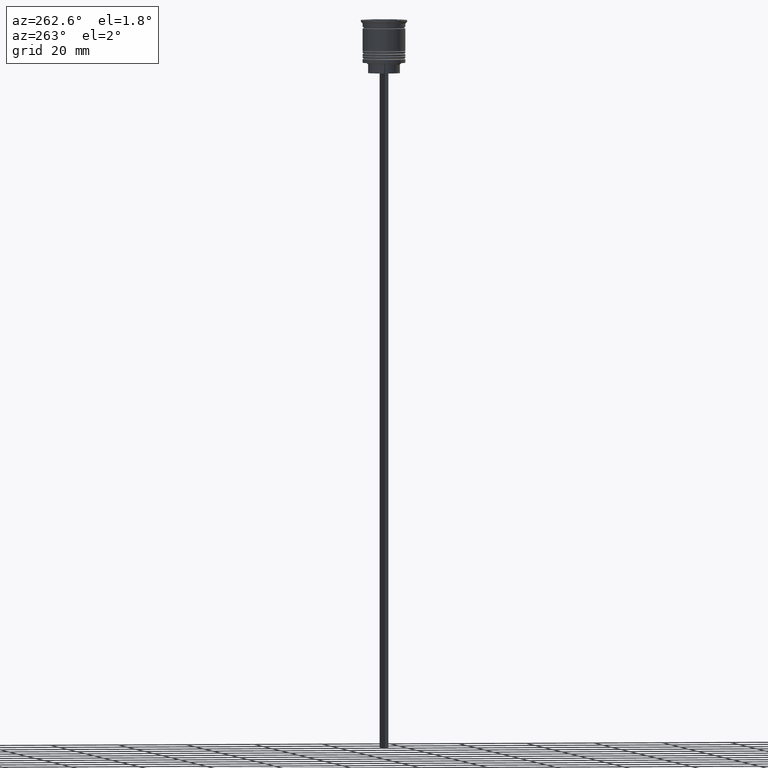
[diagram: clean part render]
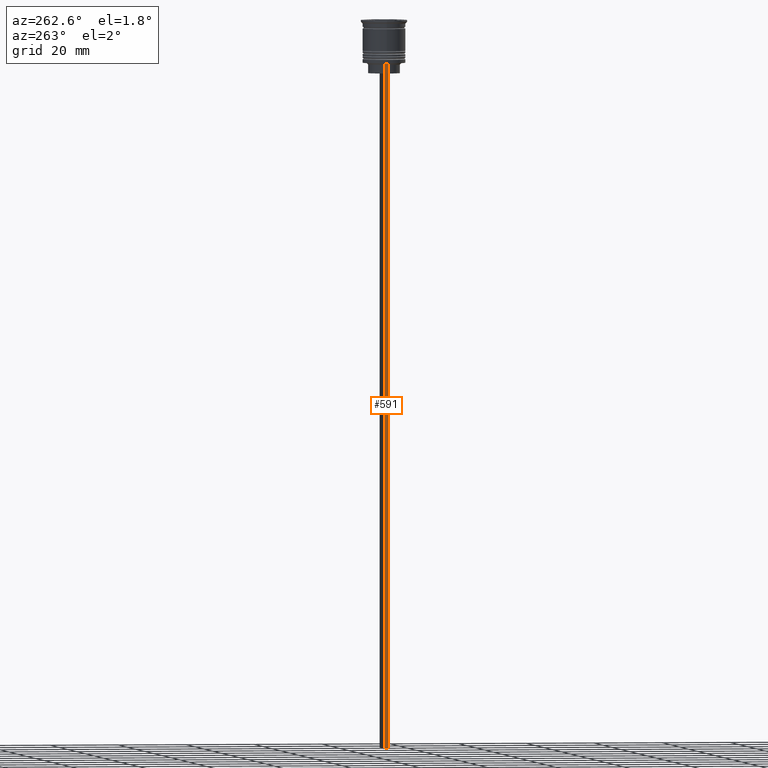
[diagram: same view with one face highlighted and labeled with its STEP entity id]
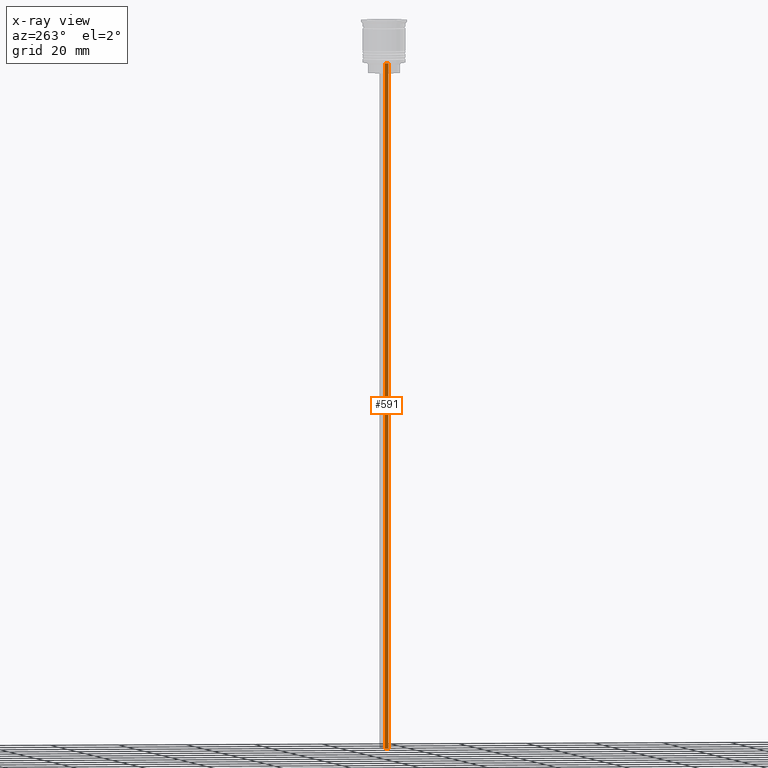
[diagram: x-ray of the same camera — body ghosted, the highlighted face saturated]
A machine part, auxiliary view. The second image highlights one B-rep face of the part: STEP entity #591.
The next image is the same camera in x-ray: the body ghosted, the highlighted face saturated — about 0% of this face is hidden behind the body in this view.
In plain terms, the highlighted planar face has unit normal (-1, 0, 0).
Its self-contained STEP definition (entity closure, byte-faithful):
#3 = CARTESIAN_POINT ( 'NONE',  ( -5.999999999999983125, -0.5000000000000017764, -0.4584054212077061097 ) ) ;
#14 = EDGE_CURVE ( 'NONE', #879, #1069, #113, .T. ) ;
#103 = EDGE_CURVE ( 'NONE', #270, #331, #505, .T. ) ;
#113 = LINE ( 'NONE', #1703, #846 ) ;
#270 = VERTEX_POINT ( 'NONE', #1501 ) ;
#331 = VERTEX_POINT ( 'NONE', #492 ) ;
#386 = EDGE_LOOP ( 'NONE', ( #420, #869, #1268, #1723 ) ) ;
#420 = ORIENTED_EDGE ( 'NONE', *, *, #14, .F. ) ;
#492 = CARTESIAN_POINT ( 'NONE',  ( -5.999999999999983125, 0.4999999999999982792, -212.5000000000000284 ) ) ;
#496 = DIRECTION ( 'NONE',  ( 0.000000000000000000, 1.000000000000000000, 0.000000000000000000 ) ) ;
#505 = LINE ( 'NONE', #1229, #2321 ) ;
#537 = FACE_OUTER_BOUND ( 'NONE', #386, .T. ) ;
#591 = ADVANCED_FACE ( 'NONE', ( #537 ), #1078, .T. ) ;
#846 = VECTOR ( 'NONE', #1364, 1000.000000000000000 ) ;
#869 = ORIENTED_EDGE ( 'NONE', *, *, #1105, .T. ) ;
#879 = VERTEX_POINT ( 'NONE', #2320 ) ;
#892 = CARTESIAN_POINT ( 'NONE',  ( -5.999999999999983125, -0.5000000000000017764, -0.4584054212077061097 ) ) ;
#1069 = VERTEX_POINT ( 'NONE', #1903 ) ;
#1078 = PLANE ( 'NONE',  #2290 ) ;
#1105 = EDGE_CURVE ( 'NONE', #879, #331, #1365, .T. ) ;
#1222 = LINE ( 'NONE', #3, #1998 ) ;
#1229 = CARTESIAN_POINT ( 'NONE',  ( -5.999999999999983125, -0.5000000000000017764, -212.5000000000000284 ) ) ;
#1268 = ORIENTED_EDGE ( 'NONE', *, *, #103, .F. ) ;
#1364 = DIRECTION ( 'NONE',  ( 0.000000000000000000, -1.000000000000000000, 0.000000000000000000 ) ) ;
#1365 = LINE ( 'NONE', #2056, #2062 ) ;
#1501 = CARTESIAN_POINT ( 'NONE',  ( -5.999999999999983125, -0.5000000000000017764, -212.5000000000000284 ) ) ;
#1618 = DIRECTION ( 'NONE',  ( 0.000000000000000000, 0.000000000000000000, -1.000000000000000000 ) ) ;
#1703 = CARTESIAN_POINT ( 'NONE',  ( -5.999999999999983125, -0.5000000000000017764, -12.50000000000000000 ) ) ;
#1723 = ORIENTED_EDGE ( 'NONE', *, *, #2081, .F. ) ;
#1812 = DIRECTION ( 'NONE',  ( 0.000000000000000000, 0.000000000000000000, 1.000000000000000000 ) ) ;
#1903 = CARTESIAN_POINT ( 'NONE',  ( -5.999999999999983125, -0.5000000000000017764, -12.50000000000000000 ) ) ;
#1985 = DIRECTION ( 'NONE',  ( -1.000000000000000000, 0.000000000000000000, 0.000000000000000000 ) ) ;
#1998 = VECTOR ( 'NONE', #1618, 1000.000000000000000 ) ;
#2056 = CARTESIAN_POINT ( 'NONE',  ( -5.999999999999983125, 0.4999999999999982792, -0.4584054212077061097 ) ) ;
#2062 = VECTOR ( 'NONE', #2246, 1000.000000000000000 ) ;
#2081 = EDGE_CURVE ( 'NONE', #1069, #270, #1222, .T. ) ;
#2246 = DIRECTION ( 'NONE',  ( 0.000000000000000000, 0.000000000000000000, -1.000000000000000000 ) ) ;
#2290 = AXIS2_PLACEMENT_3D ( 'NONE', #892, #1985, #1812 ) ;
#2320 = CARTESIAN_POINT ( 'NONE',  ( -5.999999999999983125, 0.4999999999999985012, -12.50000000000000000 ) ) ;
#2321 = VECTOR ( 'NONE', #496, 1000.000000000000000 ) ;